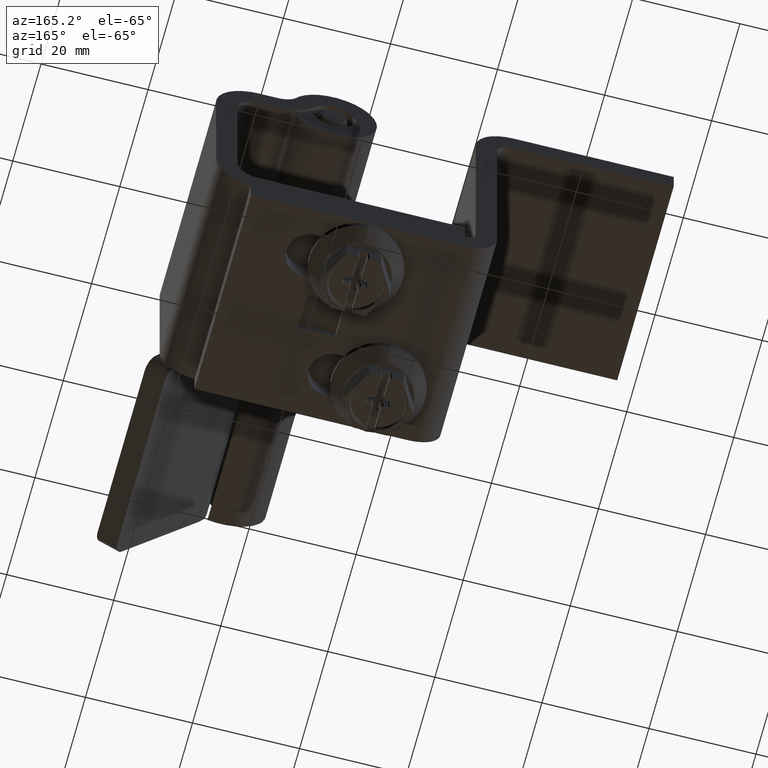
[diagram: clean part render]
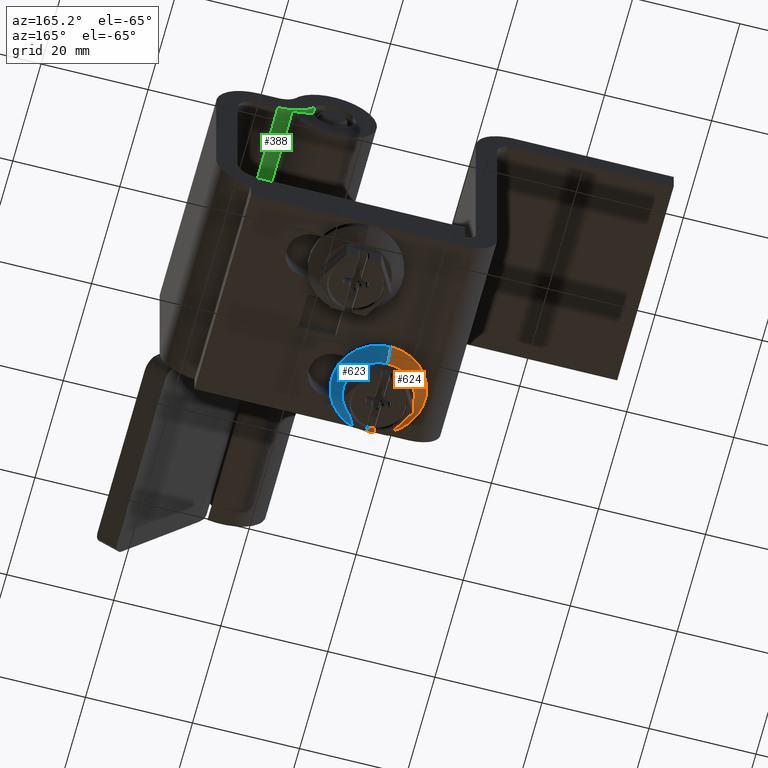
[diagram: same view with three faces highlighted in distinct colors, each labeled with its STEP entity id]
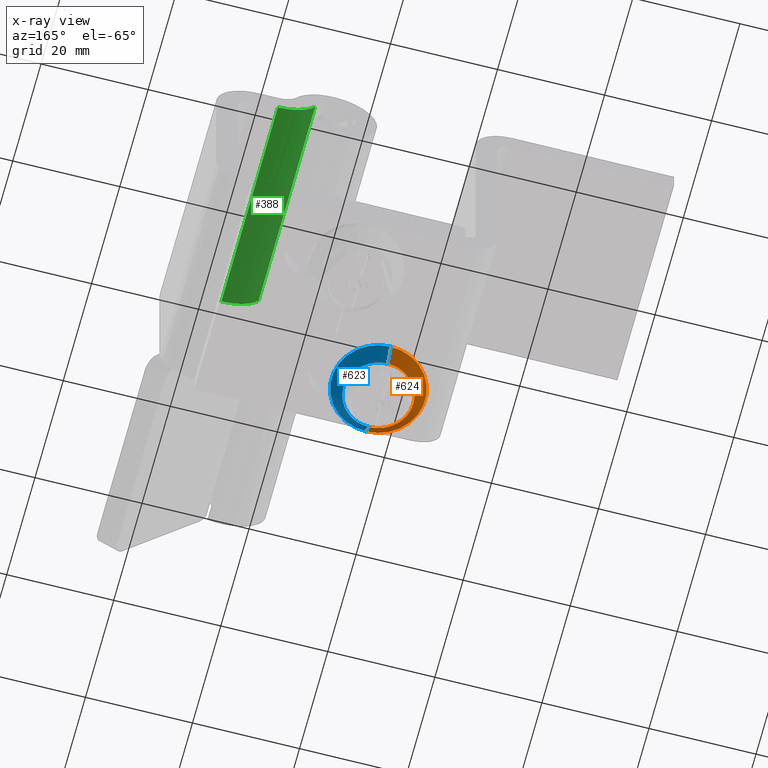
[diagram: x-ray of the same camera — body ghosted, the three highlighted faces saturated]
A machine part, auxiliary view with three faces highlighted in distinct colors.
The next image is the same camera in x-ray (body ghosted, the three faces saturated) — at least one of them is partly hidden behind the body in this view.
Their STEP definitions:

[orange] entity #624 — the highlighted face is a freeform B-spline surface patch.
#624=ADVANCED_FACE('',(#3660),#3659,.T.);
#3659=( BOUNDED_SURFACE() B_SPLINE_SURFACE( 2,1,((#5749,#5750),(#5751,#5752),(#5753,#5754),(#5755,#5756),(#5757,#5758)), .UNSPECIFIED.,.F.,.F.,.F.) B_SPLINE_SURFACE_WITH_KNOTS((3,2,3),(2,2),(0.00000000000E+00,5.00000000000E-01,1.00000000000E+00),(0.00000000000E+00,1.00000000000E+00), .UNSPECIFIED. ) GEOMETRIC_REPRESENTATION_ITEM() RATIONAL_B_SPLINE_SURFACE(((1.00000000000E+00,1.00000000000E+00),(7.07106781187E-01,7.07106781187E-01),(1.00000000000E+00,1.00000000000E+00),(7.07106781187E-01,7.07106781187E-01),(1.00000000000E+00,1.00000000000E+00))) REPRESENTATION_ITEM('') SURFACE() );
#3660=FACE_OUTER_BOUND('',#5759,.T.);
#5749=CARTESIAN_POINT('',(-6.49999976004E+00,4.68500042456E+01,6.44750030624E+01));
#5750=CARTESIAN_POINT('',(-6.49999976004E+00,4.41500041174E+01,6.22500029567E+01));
#5751=CARTESIAN_POINT('',(2.50005498833E-02,4.68500042456E+01,6.44750030624E+01));
#5752=CARTESIAN_POINT('',(2.25000065557E+00,4.41500041174E+01,6.22500029567E+01));
#5753=CARTESIAN_POINT('',(2.50005498833E-02,4.68500042456E+01,7.10000033723E+01));
#5754=CARTESIAN_POINT('',(2.25000065557E+00,4.41500041174E+01,7.10000033723E+01));
#5755=CARTESIAN_POINT('',(2.50005498833E-02,4.68500042456E+01,7.75250036822E+01));
#5756=CARTESIAN_POINT('',(2.25000065557E+00,4.41500041174E+01,7.97500037879E+01));
#5757=CARTESIAN_POINT('',(-6.49999976004E+00,4.68500042456E+01,7.75250036822E+01));
#5758=CARTESIAN_POINT('',(-6.49999976004E+00,4.41500041174E+01,7.97500037879E+01));
#5759=EDGE_LOOP('',(#7244,#7245,#7246,#7247,#7248,#7249,#7250));
#7244=ORIENTED_EDGE('',*,*,#7982,.T.);
#7245=ORIENTED_EDGE('',*,*,#7940,.T.);
#7246=ORIENTED_EDGE('',*,*,#7939,.T.);
#7247=ORIENTED_EDGE('',*,*,#7985,.T.);
#7248=ORIENTED_EDGE('',*,*,#7996,.T.);
#7249=ORIENTED_EDGE('',*,*,#7992,.T.);
#7250=ORIENTED_EDGE('',*,*,#7997,.F.);
#7939=EDGE_CURVE('',#12545,#12558,#12571,.T.);
#7940=EDGE_CURVE('',#12538,#12545,#12577,.T.);
#7982=EDGE_CURVE('',#12839,#12538,#12840,.T.);
#7985=EDGE_CURVE('',#12558,#12852,#12859,.T.);
#7992=EDGE_CURVE('',#12903,#12904,#12905,.T.);
#7996=EDGE_CURVE('',#12852,#12903,#12929,.T.);
#7997=EDGE_CURVE('',#12839,#12904,#12935,.T.);
#12538=VERTEX_POINT('',#16112);
#12545=VERTEX_POINT('',#16116);
#12558=VERTEX_POINT('',#16123);
#12571=CIRCLE('',#16133,6.52500030992E+00);
#12577=CIRCLE('',#16137,6.52500030992E+00);
#12839=VERTEX_POINT('',#16313);
#12840=CIRCLE('',#16317,6.52500030992E+00);
#12852=VERTEX_POINT('',#16322);
#12859=CIRCLE('',#16330,6.52500030992E+00);
#12903=VERTEX_POINT('',#16349);
#12904=VERTEX_POINT('',#16350);
#12905=CIRCLE('',#16354,8.75000041560E+00);
#12929=(BOUNDED_CURVE() B_SPLINE_CURVE(1,(#16363,#16364),.UNSPECIFIED.,.F.,.F.) B_SPLINE_CURVE_WITH_KNOTS((2,2),(0.00000000000E+00,1.00000000000E+00),.UNSPECIFIED.) CURVE() GEOMETRIC_REPRESENTATION_ITEM() RATIONAL_B_SPLINE_CURVE((1.00000000000E+00,1.00000000000E+00)) REPRESENTATION_ITEM('') );
#12935=(BOUNDED_CURVE() B_SPLINE_CURVE(1,(#16365,#16366),.UNSPECIFIED.,.F.,.F.) B_SPLINE_CURVE_WITH_KNOTS((2,2),(0.00000000000E+00,1.00000000000E+00),.UNSPECIFIED.) CURVE() GEOMETRIC_REPRESENTATION_ITEM() RATIONAL_B_SPLINE_CURVE((7.50000000000E-01,7.50000000000E-01)) REPRESENTATION_ITEM('') );
#16112=CARTESIAN_POINT('',(-3.23749960508E+00,4.68500042456E+01,6.53491873442E+01));
#16116=CARTESIAN_POINT('',(2.50005498829E-02,4.68500042456E+01,7.10000033723E+01));
#16123=CARTESIAN_POINT('',(-3.23749960508E+00,4.68500042456E+01,7.66508194004E+01));
#16130=CARTESIAN_POINT('',(-6.49999976004E+00,4.68500042456E+01,7.10000033723E+01));
#16131=DIRECTION('',(0.00000000000E+00,-1.00000000000E+00,0.00000000000E+00));
#16132=DIRECTION('',(-1.00000000000E+00,-0.00000000000E+00,3.04907213124E-14));
#16133=AXIS2_PLACEMENT_3D('',#16130,#16131,#16132);
#16134=CARTESIAN_POINT('',(-6.49999976004E+00,4.68500042456E+01,7.10000033723E+01));
#16135=DIRECTION('',(0.00000000000E+00,-1.00000000000E+00,0.00000000000E+00));
#16136=DIRECTION('',(-5.00000000000E-01,-0.00000000000E+00,8.66025403784E-01));
#16137=AXIS2_PLACEMENT_3D('',#16134,#16135,#16136);
#16313=CARTESIAN_POINT('',(-6.49999976004E+00,4.68500042456E+01,6.44750030624E+01));
#16314=CARTESIAN_POINT('',(-6.49999976004E+00,4.68500042456E+01,7.10000033723E+01));
#16315=DIRECTION('',(0.00000000000E+00,-1.00000000000E+00,0.00000000000E+00));
#16316=DIRECTION('',(-0.00000000000E+00,-0.00000000000E+00,1.00000000000E+00));
#16317=AXIS2_PLACEMENT_3D('',#16314,#16315,#16316);
#16322=CARTESIAN_POINT('',(-6.49999976004E+00,4.68500042456E+01,7.75250036822E+01));
#16327=CARTESIAN_POINT('',(-6.49999976004E+00,4.68500042456E+01,7.10000033723E+01));
#16328=DIRECTION('',(0.00000000000E+00,-1.00000000000E+00,0.00000000000E+00));
#16329=DIRECTION('',(-5.00000000000E-01,-0.00000000000E+00,-8.66025403785E-01));
#16330=AXIS2_PLACEMENT_3D('',#16327,#16328,#16329);
#16349=CARTESIAN_POINT('',(-6.49999976004E+00,4.41500041174E+01,7.97500037879E+01));
#16350=CARTESIAN_POINT('',(-6.49999976004E+00,4.41500041174E+01,6.22500029567E+01));
#16351=CARTESIAN_POINT('',(-6.49999976004E+00,4.41500041174E+01,7.10000033723E+01));
#16352=DIRECTION('',(-0.00000000000E+00,1.00000000000E+00,0.00000000000E+00));
#16353=DIRECTION('',(-1.01506100287E-16,-0.00000000000E+00,-1.00000000000E+00));
#16354=AXIS2_PLACEMENT_3D('',#16351,#16352,#16353);
#16363=CARTESIAN_POINT('',(-6.49999976004E+00,4.68500042456E+01,7.75250036822E+01));
#16364=CARTESIAN_POINT('',(-6.49999976004E+00,4.41500041174E+01,7.97500037879E+01));
#16365=CARTESIAN_POINT('',(-6.49999976004E+00,4.68500042456E+01,6.44750030624E+01));
#16366=CARTESIAN_POINT('',(-6.49999976004E+00,4.41500041174E+01,6.22500029567E+01));

[blue] entity #623 — the highlighted face is a freeform B-spline surface patch.
#623=ADVANCED_FACE('',(#3650),#3649,.T.);
#3649=( BOUNDED_SURFACE() B_SPLINE_SURFACE( 2,1,((#5738,#5739),(#5740,#5741),(#5742,#5743),(#5744,#5745),(#5746,#5747)), .UNSPECIFIED.,.F.,.F.,.F.) B_SPLINE_SURFACE_WITH_KNOTS((3,2,3),(2,2),(0.00000000000E+00,5.00000000000E-01,1.00000000000E+00),(0.00000000000E+00,1.00000000000E+00), .UNSPECIFIED. ) GEOMETRIC_REPRESENTATION_ITEM() RATIONAL_B_SPLINE_SURFACE(((1.00000000000E+00,1.00000000000E+00),(7.07106781187E-01,7.07106781187E-01),(1.00000000000E+00,1.00000000000E+00),(7.07106781187E-01,7.07106781187E-01),(1.00000000000E+00,1.00000000000E+00))) REPRESENTATION_ITEM('') SURFACE() );
#3650=FACE_OUTER_BOUND('',#5748,.T.);
#5738=CARTESIAN_POINT('',(-6.49999976004E+00,4.68500042456E+01,7.75250036822E+01));
#5739=CARTESIAN_POINT('',(-6.49999976004E+00,4.41500041174E+01,7.97500037879E+01));
#5740=CARTESIAN_POINT('',(-1.30250000700E+01,4.68500042456E+01,7.75250036822E+01));
#5741=CARTESIAN_POINT('',(-1.52500001756E+01,4.41500041174E+01,7.97500037879E+01));
#5742=CARTESIAN_POINT('',(-1.30250000700E+01,4.68500042456E+01,7.10000033723E+01));
#5743=CARTESIAN_POINT('',(-1.52500001756E+01,4.41500041174E+01,7.10000033723E+01));
#5744=CARTESIAN_POINT('',(-1.30250000700E+01,4.68500042456E+01,6.44750030624E+01));
#5745=CARTESIAN_POINT('',(-1.52500001756E+01,4.41500041174E+01,6.22500029567E+01));
#5746=CARTESIAN_POINT('',(-6.49999976004E+00,4.68500042456E+01,6.44750030624E+01));
#5747=CARTESIAN_POINT('',(-6.49999976004E+00,4.41500041174E+01,6.22500029567E+01));
#5748=EDGE_LOOP('',(#7237,#7238,#7239,#7240,#7241,#7242,#7243));
#7237=ORIENTED_EDGE('',*,*,#7995,.T.);
#7238=ORIENTED_EDGE('',*,*,#7996,.F.);
#7239=ORIENTED_EDGE('',*,*,#7984,.T.);
#7240=ORIENTED_EDGE('',*,*,#7942,.T.);
#7241=ORIENTED_EDGE('',*,*,#7941,.T.);
#7242=ORIENTED_EDGE('',*,*,#7983,.T.);
#7243=ORIENTED_EDGE('',*,*,#7997,.T.);
#7941=EDGE_CURVE('',#12512,#12525,#12583,.T.);
#7942=EDGE_CURVE('',#12505,#12512,#12589,.T.);
#7983=EDGE_CURVE('',#12525,#12839,#12846,.T.);
#7984=EDGE_CURVE('',#12852,#12505,#12853,.T.);
#7995=EDGE_CURVE('',#12904,#12903,#12923,.T.);
#7996=EDGE_CURVE('',#12852,#12903,#12929,.T.);
#7997=EDGE_CURVE('',#12839,#12904,#12935,.T.);
#12505=VERTEX_POINT('',#16094);
#12512=VERTEX_POINT('',#16098);
#12525=VERTEX_POINT('',#16105);
#12583=CIRCLE('',#16141,6.52500030992E+00);
#12589=CIRCLE('',#16145,6.52500030992E+00);
#12839=VERTEX_POINT('',#16313);
#12846=CIRCLE('',#16321,6.52500030992E+00);
#12852=VERTEX_POINT('',#16322);
#12853=CIRCLE('',#16326,6.52500030992E+00);
#12903=VERTEX_POINT('',#16349);
#12904=VERTEX_POINT('',#16350);
#12923=CIRCLE('',#16362,8.75000041560E+00);
#12929=(BOUNDED_CURVE() B_SPLINE_CURVE(1,(#16363,#16364),.UNSPECIFIED.,.F.,.F.) B_SPLINE_CURVE_WITH_KNOTS((2,2),(0.00000000000E+00,1.00000000000E+00),.UNSPECIFIED.) CURVE() GEOMETRIC_REPRESENTATION_ITEM() RATIONAL_B_SPLINE_CURVE((1.00000000000E+00,1.00000000000E+00)) REPRESENTATION_ITEM('') );
#12935=(BOUNDED_CURVE() B_SPLINE_CURVE(1,(#16365,#16366),.UNSPECIFIED.,.F.,.F.) B_SPLINE_CURVE_WITH_KNOTS((2,2),(0.00000000000E+00,1.00000000000E+00),.UNSPECIFIED.) CURVE() GEOMETRIC_REPRESENTATION_ITEM() RATIONAL_B_SPLINE_CURVE((7.50000000000E-01,7.50000000000E-01)) REPRESENTATION_ITEM('') );
#16094=CARTESIAN_POINT('',(-9.76249991500E+00,4.68500042456E+01,7.66508194004E+01));
#16098=CARTESIAN_POINT('',(-1.30250000700E+01,4.68500042456E+01,7.10000033723E+01));
#16105=CARTESIAN_POINT('',(-9.76249991500E+00,4.68500042456E+01,6.53491873442E+01));
#16138=CARTESIAN_POINT('',(-6.49999976004E+00,4.68500042456E+01,7.10000033723E+01));
#16139=DIRECTION('',(0.00000000000E+00,-1.00000000000E+00,0.00000000000E+00));
#16140=DIRECTION('',(1.00000000000E+00,-0.00000000000E+00,-7.84047119461E-14));
#16141=AXIS2_PLACEMENT_3D('',#16138,#16139,#16140);
#16142=CARTESIAN_POINT('',(-6.49999976004E+00,4.68500042456E+01,7.10000033723E+01));
#16143=DIRECTION('',(0.00000000000E+00,-1.00000000000E+00,0.00000000000E+00));
#16144=DIRECTION('',(5.00000000000E-01,-0.00000000000E+00,-8.66025403784E-01));
#16145=AXIS2_PLACEMENT_3D('',#16142,#16143,#16144);
#16313=CARTESIAN_POINT('',(-6.49999976004E+00,4.68500042456E+01,6.44750030624E+01));
#16318=CARTESIAN_POINT('',(-6.49999976004E+00,4.68500042456E+01,7.10000033723E+01));
#16319=DIRECTION('',(0.00000000000E+00,-1.00000000000E+00,0.00000000000E+00));
#16320=DIRECTION('',(-0.00000000000E+00,-0.00000000000E+00,1.00000000000E+00));
#16321=AXIS2_PLACEMENT_3D('',#16318,#16319,#16320);
#16322=CARTESIAN_POINT('',(-6.49999976004E+00,4.68500042456E+01,7.75250036822E+01));
#16323=CARTESIAN_POINT('',(-6.49999976004E+00,4.68500042456E+01,7.10000033723E+01));
#16324=DIRECTION('',(0.00000000000E+00,-1.00000000000E+00,0.00000000000E+00));
#16325=DIRECTION('',(-5.00000000000E-01,-0.00000000000E+00,-8.66025403785E-01));
#16326=AXIS2_PLACEMENT_3D('',#16323,#16324,#16325);
#16349=CARTESIAN_POINT('',(-6.49999976004E+00,4.41500041174E+01,7.97500037879E+01));
#16350=CARTESIAN_POINT('',(-6.49999976004E+00,4.41500041174E+01,6.22500029567E+01));
#16359=CARTESIAN_POINT('',(-6.49999976004E+00,4.41500041174E+01,7.10000033723E+01));
#16360=DIRECTION('',(-0.00000000000E+00,1.00000000000E+00,0.00000000000E+00));
#16361=DIRECTION('',(-1.01506100287E-16,-0.00000000000E+00,-1.00000000000E+00));
#16362=AXIS2_PLACEMENT_3D('',#16359,#16360,#16361);
#16363=CARTESIAN_POINT('',(-6.49999976004E+00,4.68500042456E+01,7.75250036822E+01));
#16364=CARTESIAN_POINT('',(-6.49999976004E+00,4.41500041174E+01,7.97500037879E+01));
#16365=CARTESIAN_POINT('',(-6.49999976004E+00,4.68500042456E+01,6.44750030624E+01));
#16366=CARTESIAN_POINT('',(-6.49999976004E+00,4.41500041174E+01,6.22500029567E+01));

[green] entity #388 — the highlighted cylindrical surface (partial cylindrical patch) has radius 8 mm, axis along (0, -1, 0).
#388=ADVANCED_FACE('',(#1298),#1297,.T.);
#1297=CYLINDRICAL_SURFACE('',#4038,8.00000000000E+00);
#1298=FACE_OUTER_BOUND('',#4039,.T.);
#4035=CARTESIAN_POINT('',(1.04500000000E+01,-2.08000000000E+01,6.00000000000E+00));
#4036=DIRECTION('',(4.21526437564E-16,-1.00000000000E+00,3.01219575542E-16));
#4037=DIRECTION('',(-2.09902892005E-02,2.92305248898E-16,9.99779679609E-01));
#4038=AXIS2_PLACEMENT_3D('',#4035,#4036,#4037);
#4039=EDGE_LOOP('',(#6123,#6124,#6125,#6126));
#6123=ORIENTED_EDGE('',*,*,#7455,.T.);
#6124=ORIENTED_EDGE('',*,*,#7456,.F.);
#6125=ORIENTED_EDGE('',*,*,#7457,.F.);
#6126=ORIENTED_EDGE('',*,*,#7434,.T.);
#7434=EDGE_CURVE('',#9232,#9225,#9233,.T.);
#7455=EDGE_CURVE('',#9225,#9364,#9371,.T.);
#7456=EDGE_CURVE('',#9377,#9364,#9378,.T.);
#7457=EDGE_CURVE('',#9232,#9377,#9384,.T.);
#9225=VERTEX_POINT('',#14022);
#9232=VERTEX_POINT('',#14044);
#9233=(BOUNDED_CURVE() B_SPLINE_CURVE(3,(#14045,#14046,#14047,#14048,#14049,#14050,#14051),.UNSPECIFIED.,.F.,.F.) B_SPLINE_CURVE_WITH_KNOTS((4,1,1,1,4),(0.00000000000E+00,2.50000000000E-01,5.00000000000E-01,7.50000000000E-01,1.00000000000E+00),.UNSPECIFIED.) CURVE() GEOMETRIC_REPRESENTATION_ITEM() RATIONAL_B_SPLINE_CURVE((1.00000000000E+00,1.00000000000E+00,1.00000000000E+00,1.00000000000E+00,1.00000000000E+00,1.00000000000E+00,1.00000000000E+00)) REPRESENTATION_ITEM('') );
#9364=VERTEX_POINT('',#14160);
#9371=LINE('',#14182,#14183);
#9377=VERTEX_POINT('',#14185);
#9378=(BOUNDED_CURVE() B_SPLINE_CURVE(3,(#14186,#14187,#14188,#14189,#14190,#14191,#14192),.UNSPECIFIED.,.F.,.F.) B_SPLINE_CURVE_WITH_KNOTS((4,1,1,1,4),(0.00000000000E+00,2.50000000000E-01,5.00000000000E-01,7.50000000000E-01,1.00000000000E+00),.UNSPECIFIED.) CURVE() GEOMETRIC_REPRESENTATION_ITEM() RATIONAL_B_SPLINE_CURVE((1.00000000000E+00,1.00000000000E+00,1.00000000000E+00,1.00000000000E+00,1.00000000000E+00,1.00000000000E+00,1.00000000000E+00)) REPRESENTATION_ITEM('') );
#9384=LINE('',#14193,#14194);
#14022=CARTESIAN_POINT('',(3.51224066390E+00,-2.00000000000E+01,2.01659751037E+00));
#14044=CARTESIAN_POINT('',(1.04500000000E+01,-2.00000000000E+01,-2.00000000000E+00));
#14045=CARTESIAN_POINT('',(1.04500000000E+01,-2.00000000000E+01,-2.00000000000E+00));
#14046=CARTESIAN_POINT('',(9.78195163928E+00,-2.00000000000E+01,-2.00000000000E+00));
#14047=CARTESIAN_POINT('',(8.39901600758E+00,-2.00000000000E+01,-1.83014756485E+00));
#14048=CARTESIAN_POINT('',(6.39261652128E+00,-2.00000000000E+01,-1.00820782689E+00));
#14049=CARTESIAN_POINT('',(4.68077692132E+00,-2.00000000000E+01,3.22517169301E-01));
#14050=CARTESIAN_POINT('',(3.84487885181E+00,-2.00000000000E+01,1.43725266643E+00));
#14051=CARTESIAN_POINT('',(3.51224066390E+00,-2.00000000000E+01,2.01659751037E+00));
#14160=CARTESIAN_POINT('',(3.51224066390E+00,2.00000000000E+01,2.01659751037E+00));
#14182=CARTESIAN_POINT('',(3.51224066390E+00,-2.00000000000E+01,2.01659751037E+00));
#14183=VECTOR('',#14184,4.00000000000E+01);
#14184=DIRECTION('',(0.00000000000E+00,1.00000000000E+00,0.00000000000E+00));
#14185=CARTESIAN_POINT('',(1.04500000000E+01,2.00000000000E+01,-2.00000000000E+00));
#14186=CARTESIAN_POINT('',(1.04500000000E+01,2.00000000000E+01,-2.00000000000E+00));
#14187=CARTESIAN_POINT('',(9.78195163928E+00,2.00000000000E+01,-2.00000000000E+00));
#14188=CARTESIAN_POINT('',(8.39901600758E+00,2.00000000000E+01,-1.83014756485E+00));
#14189=CARTESIAN_POINT('',(6.39261652128E+00,2.00000000000E+01,-1.00820782689E+00));
#14190=CARTESIAN_POINT('',(4.68077692132E+00,2.00000000000E+01,3.22517169301E-01));
#14191=CARTESIAN_POINT('',(3.84487885181E+00,2.00000000000E+01,1.43725266643E+00));
#14192=CARTESIAN_POINT('',(3.51224066390E+00,2.00000000000E+01,2.01659751037E+00));
#14193=CARTESIAN_POINT('',(1.04500000000E+01,-2.00000000000E+01,-2.00000000000E+00));
#14194=VECTOR('',#14195,4.00000000000E+01);
#14195=DIRECTION('',(0.00000000000E+00,1.00000000000E+00,0.00000000000E+00));